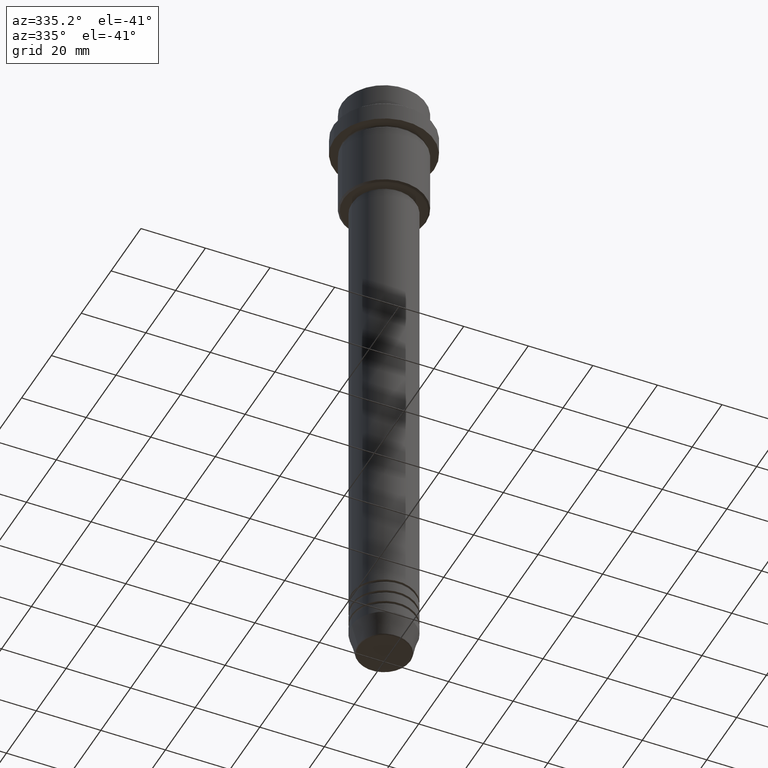
[diagram: clean part render]
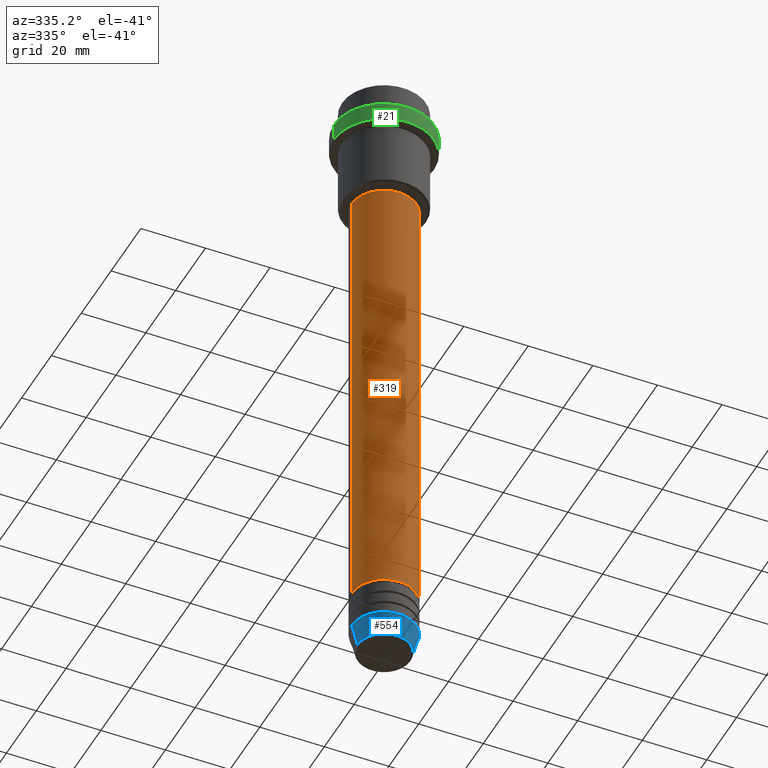
[diagram: same view with three faces highlighted in distinct colors, each labeled with its STEP entity id]
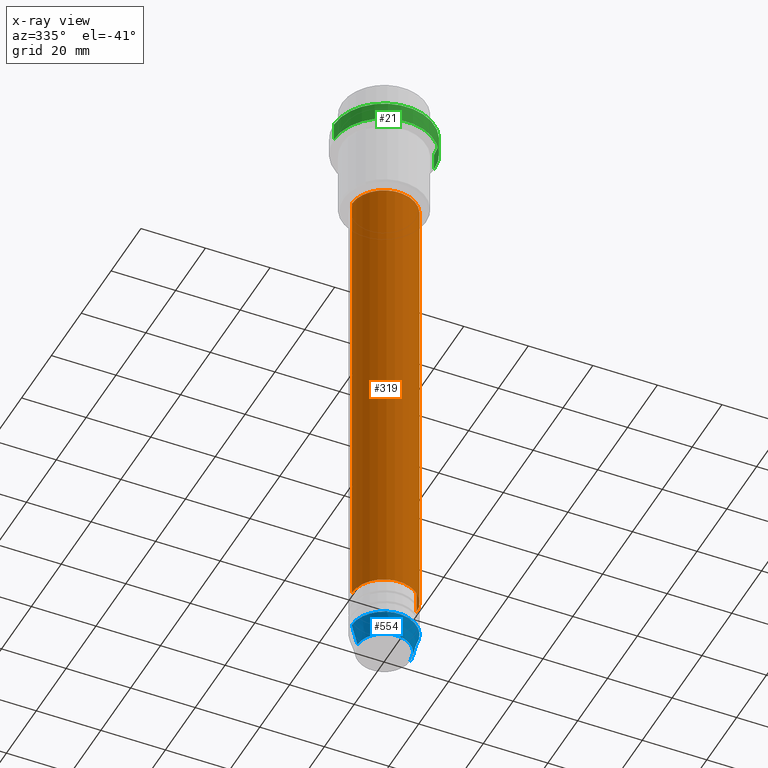
[diagram: x-ray of the same camera — body ghosted, the three highlighted faces saturated]
A machine part, auxiliary view with three faces highlighted in distinct colors.
The next image is the same camera in x-ray (body ghosted, the three faces saturated) — at least one of them is partly hidden behind the body in this view.
Their STEP definitions:

[orange] entity #319 — the highlighted cylindrical surface (edge-blend (fillet) strip) has radius 10 mm, axis along (-0, -0, 1).
#2 = VERTEX_POINT ( 'NONE', #297 ) ;
#47 = CARTESIAN_POINT ( 'NONE',  ( 10.00000000000000000, 0.000000000000000000, -181.9999999999998863 ) ) ;
#48 = DIRECTION ( 'NONE',  ( 1.000000000000000000, 0.000000000000000000, 0.000000000000000000 ) ) ;
#79 = EDGE_CURVE ( 'NONE', #1232, #2, #221, .T. ) ;
#102 = ORIENTED_EDGE ( 'NONE', *, *, #1172, .F. ) ;
#157 = VECTOR ( 'NONE', #1032, 1000.000000000000000 ) ;
#197 = CARTESIAN_POINT ( 'NONE',  ( -10.00000000000000000, 1.224646799147353256E-15, -181.9999999999998863 ) ) ;
#205 = DIRECTION ( 'NONE',  ( -0.000000000000000000, -0.000000000000000000, 1.000000000000000000 ) ) ;
#221 = LINE ( 'NONE', #458, #484 ) ;
#226 = VERTEX_POINT ( 'NONE', #763 ) ;
#242 = ORIENTED_EDGE ( 'NONE', *, *, #79, .T. ) ;
#294 = DIRECTION ( 'NONE',  ( 1.000000000000000000, 0.000000000000000000, 0.000000000000000000 ) ) ;
#297 = CARTESIAN_POINT ( 'NONE',  ( 10.00000000000000178, 0.000000000000000000, -37.00000000000000711 ) ) ;
#319 = ADVANCED_FACE ( 'NONE', ( #356 ), #905, .T. ) ;
#320 = CIRCLE ( 'NONE', #992, 10.00000000000000000 ) ;
#336 = DIRECTION ( 'NONE',  ( -0.000000000000000000, -0.000000000000000000, 1.000000000000000000 ) ) ;
#356 = FACE_OUTER_BOUND ( 'NONE', #1156, .T. ) ;
#398 = DIRECTION ( 'NONE',  ( -0.000000000000000000, -0.000000000000000000, 1.000000000000000000 ) ) ;
#406 = AXIS2_PLACEMENT_3D ( 'NONE', #1057, #205, #625 ) ;
#458 = CARTESIAN_POINT ( 'NONE',  ( 10.00000000000000178, 0.000000000000000000, 0.000000000000000000 ) ) ;
#484 = VECTOR ( 'NONE', #769, 1000.000000000000000 ) ;
#579 = CARTESIAN_POINT ( 'NONE',  ( -10.00000000000000178, 1.224646799147353454E-15, 0.000000000000000000 ) ) ;
#625 = DIRECTION ( 'NONE',  ( 1.000000000000000000, 0.000000000000000000, 0.000000000000000000 ) ) ;
#662 = LINE ( 'NONE', #579, #157 ) ;
#691 = ORIENTED_EDGE ( 'NONE', *, *, #1399, .T. ) ;
#763 = CARTESIAN_POINT ( 'NONE',  ( -10.00000000000000178, 1.224646799147353454E-15, -37.00000000000000711 ) ) ;
#769 = DIRECTION ( 'NONE',  ( -0.000000000000000000, -0.000000000000000000, 1.000000000000000000 ) ) ;
#776 = ORIENTED_EDGE ( 'NONE', *, *, #916, .F. ) ;
#866 = AXIS2_PLACEMENT_3D ( 'NONE', #1026, #336, #48 ) ;
#905 = CYLINDRICAL_SURFACE ( 'NONE', #866, 10.00000000000000178 ) ;
#916 = EDGE_CURVE ( 'NONE', #226, #2, #1035, .T. ) ;
#964 = VERTEX_POINT ( 'NONE', #197 ) ;
#992 = AXIS2_PLACEMENT_3D ( 'NONE', #1179, #398, #294 ) ;
#1026 = CARTESIAN_POINT ( 'NONE',  ( 0.000000000000000000, 0.000000000000000000, 0.000000000000000000 ) ) ;
#1032 = DIRECTION ( 'NONE',  ( -0.000000000000000000, -0.000000000000000000, 1.000000000000000000 ) ) ;
#1035 = CIRCLE ( 'NONE', #406, 10.00000000000000178 ) ;
#1057 = CARTESIAN_POINT ( 'NONE',  ( 0.000000000000000000, 0.000000000000000000, -37.00000000000000711 ) ) ;
#1156 = EDGE_LOOP ( 'NONE', ( #102, #691, #242, #776 ) ) ;
#1172 = EDGE_CURVE ( 'NONE', #964, #226, #662, .T. ) ;
#1179 = CARTESIAN_POINT ( 'NONE',  ( 0.000000000000000000, 0.000000000000000000, -181.9999999999998863 ) ) ;
#1232 = VERTEX_POINT ( 'NONE', #47 ) ;
#1399 = EDGE_CURVE ( 'NONE', #964, #1232, #320, .T. ) ;

[blue] entity #554 — the highlighted conical surface has half-angle 15 deg.
#4 = DIRECTION ( 'NONE',  ( -0.2588190451025214611, 3.169619151431774186E-17, 0.9659258262890679791 ) ) ;
#13 = AXIS2_PLACEMENT_3D ( 'NONE', #1168, #956, #1404 ) ;
#94 = AXIS2_PLACEMENT_3D ( 'NONE', #524, #725, #960 ) ;
#123 = CONICAL_SURFACE ( 'NONE', #94, 10.00000000000000000, 0.2617993877991502405 ) ;
#233 = VERTEX_POINT ( 'NONE', #1099 ) ;
#261 = LINE ( 'NONE', #703, #1014 ) ;
#307 = EDGE_LOOP ( 'NONE', ( #877, #1362, #885, #351 ) ) ;
#351 = ORIENTED_EDGE ( 'NONE', *, *, #485, .F. ) ;
#480 = EDGE_CURVE ( 'NONE', #1345, #910, #1154, .T. ) ;
#485 = EDGE_CURVE ( 'NONE', #233, #1247, #624, .T. ) ;
#524 = CARTESIAN_POINT ( 'NONE',  ( 0.000000000000000000, 0.000000000000000000, -194.0000000000000000 ) ) ;
#554 = ADVANCED_FACE ( 'NONE', ( #736 ), #123, .T. ) ;
#617 = LINE ( 'NONE', #1070, #940 ) ;
#624 = CIRCLE ( 'NONE', #13, 10.00000000000000000 ) ;
#703 = CARTESIAN_POINT ( 'NONE',  ( 10.00000000000000000, 0.000000000000000000, -194.0000000000000000 ) ) ;
#725 = DIRECTION ( 'NONE',  ( -0.000000000000000000, -0.000000000000000000, 1.000000000000000000 ) ) ;
#736 = FACE_OUTER_BOUND ( 'NONE', #307, .T. ) ;
#877 = ORIENTED_EDGE ( 'NONE', *, *, #978, .F. ) ;
#885 = ORIENTED_EDGE ( 'NONE', *, *, #887, .T. ) ;
#887 = EDGE_CURVE ( 'NONE', #910, #1247, #261, .T. ) ;
#910 = VERTEX_POINT ( 'NONE', #1187 ) ;
#940 = VECTOR ( 'NONE', #4, 1000.000000000000114 ) ;
#949 = DIRECTION ( 'NONE',  ( 1.000000000000000000, 0.000000000000000000, 0.000000000000000000 ) ) ;
#956 = DIRECTION ( 'NONE',  ( -0.000000000000000000, -0.000000000000000000, 1.000000000000000000 ) ) ;
#960 = DIRECTION ( 'NONE',  ( 1.000000000000000000, 0.000000000000000000, 0.000000000000000000 ) ) ;
#978 = EDGE_CURVE ( 'NONE', #1345, #233, #617, .T. ) ;
#985 = CARTESIAN_POINT ( 'NONE',  ( 0.000000000000000000, 0.000000000000000000, -200.6294095225512706 ) ) ;
#1014 = VECTOR ( 'NONE', #1151, 1000.000000000000114 ) ;
#1046 = CARTESIAN_POINT ( 'NONE',  ( -8.223655072137189492, 1.115877042642911856E-15, -200.6294095225512706 ) ) ;
#1070 = CARTESIAN_POINT ( 'NONE',  ( -10.00000000000000000, 1.224646799147353256E-15, -194.0000000000000000 ) ) ;
#1099 = CARTESIAN_POINT ( 'NONE',  ( -10.00000000000000000, 1.224646799147353256E-15, -194.0000000000000000 ) ) ;
#1114 = DIRECTION ( 'NONE',  ( -0.000000000000000000, -0.000000000000000000, 1.000000000000000000 ) ) ;
#1151 = DIRECTION ( 'NONE',  ( 0.2588190451025214611, 0.000000000000000000, 0.9659258262890679791 ) ) ;
#1154 = CIRCLE ( 'NONE', #1319, 8.223655072137189492 ) ;
#1168 = CARTESIAN_POINT ( 'NONE',  ( 0.000000000000000000, 0.000000000000000000, -194.0000000000000000 ) ) ;
#1187 = CARTESIAN_POINT ( 'NONE',  ( 8.223655072137189492, 0.000000000000000000, -200.6294095225512706 ) ) ;
#1247 = VERTEX_POINT ( 'NONE', #1278 ) ;
#1278 = CARTESIAN_POINT ( 'NONE',  ( 10.00000000000000000, 0.000000000000000000, -194.0000000000000000 ) ) ;
#1319 = AXIS2_PLACEMENT_3D ( 'NONE', #985, #1114, #949 ) ;
#1345 = VERTEX_POINT ( 'NONE', #1046 ) ;
#1362 = ORIENTED_EDGE ( 'NONE', *, *, #480, .T. ) ;
#1404 = DIRECTION ( 'NONE',  ( 1.000000000000000000, 0.000000000000000000, 0.000000000000000000 ) ) ;

[green] entity #21 — the highlighted cylindrical surface (partial cylindrical patch) has radius 15.5 mm, axis along (-0, -0, 1).
#21 = ADVANCED_FACE ( 'NONE', ( #87 ), #1184, .T. ) ;
#45 = ORIENTED_EDGE ( 'NONE', *, *, #1165, .T. ) ;
#57 = CIRCLE ( 'NONE', #752, 15.50000000000000000 ) ;
#87 = FACE_OUTER_BOUND ( 'NONE', #1203, .T. ) ;
#151 = DIRECTION ( 'NONE',  ( 1.000000000000000000, 0.000000000000000000, 0.000000000000000000 ) ) ;
#152 = AXIS2_PLACEMENT_3D ( 'NONE', #1130, #561, #151 ) ;
#235 = DIRECTION ( 'NONE',  ( -0.000000000000000000, -0.000000000000000000, 1.000000000000000000 ) ) ;
#335 = LINE ( 'NONE', #1225, #434 ) ;
#362 = VERTEX_POINT ( 'NONE', #786 ) ;
#382 = LINE ( 'NONE', #814, #829 ) ;
#392 = CARTESIAN_POINT ( 'NONE',  ( 0.000000000000000000, 0.000000000000000000, 0.000000000000000000 ) ) ;
#407 = VERTEX_POINT ( 'NONE', #571 ) ;
#413 = EDGE_CURVE ( 'NONE', #407, #362, #57, .T. ) ;
#418 = VERTEX_POINT ( 'NONE', #464 ) ;
#434 = VECTOR ( 'NONE', #235, 1000.000000000000000 ) ;
#464 = CARTESIAN_POINT ( 'NONE',  ( -15.50000000000000000, 1.898202538678397557E-15, -15.00000000000000000 ) ) ;
#472 = EDGE_CURVE ( 'NONE', #418, #991, #842, .T. ) ;
#518 = DIRECTION ( 'NONE',  ( 1.000000000000000000, 0.000000000000000000, 0.000000000000000000 ) ) ;
#561 = DIRECTION ( 'NONE',  ( -0.000000000000000000, -0.000000000000000000, 1.000000000000000000 ) ) ;
#571 = CARTESIAN_POINT ( 'NONE',  ( 15.50000000000000000, 0.000000000000000000, -9.499999999999984013 ) ) ;
#589 = ORIENTED_EDGE ( 'NONE', *, *, #472, .T. ) ;
#602 = DIRECTION ( 'NONE',  ( -0.000000000000000000, -0.000000000000000000, 1.000000000000000000 ) ) ;
#603 = AXIS2_PLACEMENT_3D ( 'NONE', #392, #602, #518 ) ;
#640 = DIRECTION ( 'NONE',  ( 1.000000000000000000, 0.000000000000000000, 0.000000000000000000 ) ) ;
#648 = CARTESIAN_POINT ( 'NONE',  ( 0.000000000000000000, 0.000000000000000000, -9.499999999999984013 ) ) ;
#752 = AXIS2_PLACEMENT_3D ( 'NONE', #648, #1213, #640 ) ;
#786 = CARTESIAN_POINT ( 'NONE',  ( -15.50000000000000000, 1.898202538678397557E-15, -9.499999999999984013 ) ) ;
#814 = CARTESIAN_POINT ( 'NONE',  ( -15.50000000000000000, 1.898202538678397557E-15, 0.000000000000000000 ) ) ;
#829 = VECTOR ( 'NONE', #1152, 1000.000000000000000 ) ;
#842 = CIRCLE ( 'NONE', #152, 15.50000000000000000 ) ;
#931 = ORIENTED_EDGE ( 'NONE', *, *, #1243, .F. ) ;
#991 = VERTEX_POINT ( 'NONE', #1415 ) ;
#1130 = CARTESIAN_POINT ( 'NONE',  ( 0.000000000000000000, 0.000000000000000000, -15.00000000000000000 ) ) ;
#1152 = DIRECTION ( 'NONE',  ( -0.000000000000000000, -0.000000000000000000, 1.000000000000000000 ) ) ;
#1165 = EDGE_CURVE ( 'NONE', #991, #407, #335, .T. ) ;
#1184 = CYLINDRICAL_SURFACE ( 'NONE', #603, 15.50000000000000000 ) ;
#1203 = EDGE_LOOP ( 'NONE', ( #931, #589, #45, #1246 ) ) ;
#1213 = DIRECTION ( 'NONE',  ( 0.000000000000000000, 0.000000000000000000, -1.000000000000000000 ) ) ;
#1225 = CARTESIAN_POINT ( 'NONE',  ( 15.50000000000000000, 0.000000000000000000, 0.000000000000000000 ) ) ;
#1243 = EDGE_CURVE ( 'NONE', #418, #362, #382, .T. ) ;
#1246 = ORIENTED_EDGE ( 'NONE', *, *, #413, .T. ) ;
#1415 = CARTESIAN_POINT ( 'NONE',  ( 15.50000000000000000, 0.000000000000000000, -15.00000000000000000 ) ) ;